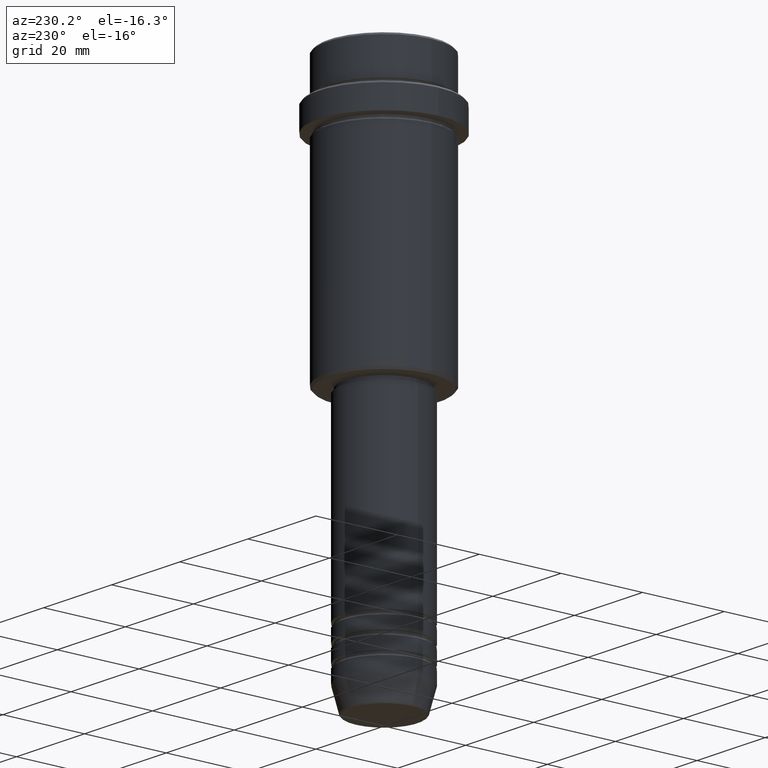
[diagram: clean part render]
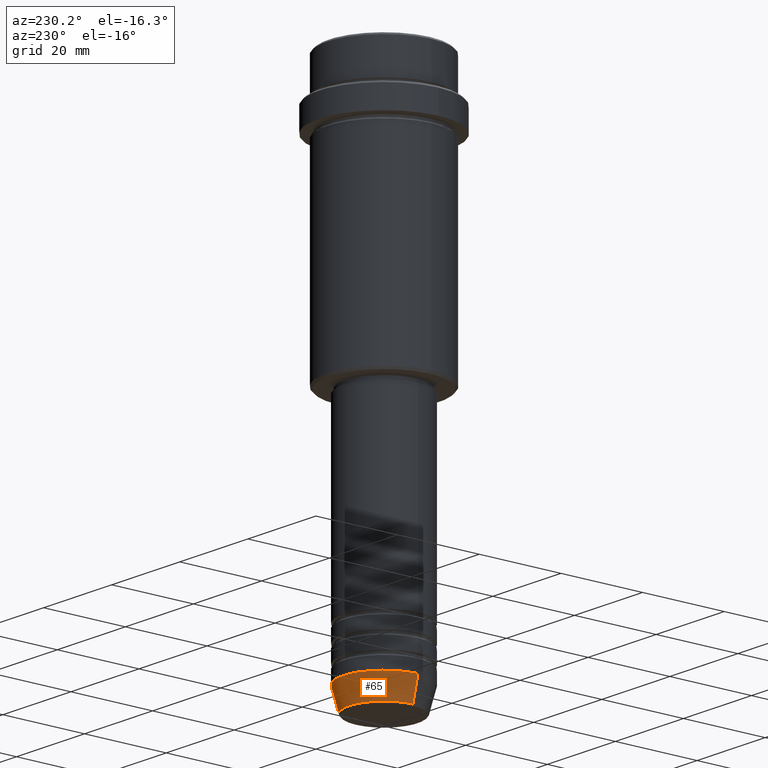
[diagram: same view with one face highlighted and labeled with its STEP entity id]
A machine part, auxiliary view. The second image highlights one B-rep face of the part: STEP entity #65.
In plain terms, the highlighted conical surface has half-angle 15 deg.
Its self-contained STEP definition (entity closure, byte-faithful):
#12 = VERTEX_POINT ( 'NONE', #908 ) ;
#27 = VERTEX_POINT ( 'NONE', #264 ) ;
#50 = DIRECTION ( 'NONE',  ( -0.000000000000000000, -0.000000000000000000, 1.000000000000000000 ) ) ;
#55 = EDGE_LOOP ( 'NONE', ( #1011, #124, #1270, #222 ) ) ;
#65 = ADVANCED_FACE ( 'NONE', ( #1133 ), #1342, .T. ) ;
#66 = CIRCLE ( 'NONE', #867, 10.00000000000000000 ) ;
#93 = CARTESIAN_POINT ( 'NONE',  ( -10.00000000000000000, 1.224646799147353256E-15, -124.0000000000000000 ) ) ;
#97 = CARTESIAN_POINT ( 'NONE',  ( 0.000000000000000000, 0.000000000000000000, -129.6294095225512706 ) ) ;
#124 = ORIENTED_EDGE ( 'NONE', *, *, #1255, .T. ) ;
#147 = CARTESIAN_POINT ( 'NONE',  ( 0.000000000000000000, 0.000000000000000000, -124.0000000000000000 ) ) ;
#179 = DIRECTION ( 'NONE',  ( 1.000000000000000000, 0.000000000000000000, 0.000000000000000000 ) ) ;
#222 = ORIENTED_EDGE ( 'NONE', *, *, #767, .F. ) ;
#251 = VECTOR ( 'NONE', #658, 1000.000000000000114 ) ;
#255 = EDGE_CURVE ( 'NONE', #956, #27, #842, .T. ) ;
#264 = CARTESIAN_POINT ( 'NONE',  ( -8.491604264568309191, 1.132284198685156387E-15, -129.6294095225512706 ) ) ;
#275 = DIRECTION ( 'NONE',  ( 1.000000000000000000, 0.000000000000000000, 0.000000000000000000 ) ) ;
#426 = CARTESIAN_POINT ( 'NONE',  ( 10.00000000000000000, 0.000000000000000000, -124.0000000000000000 ) ) ;
#612 = AXIS2_PLACEMENT_3D ( 'NONE', #147, #50, #275 ) ;
#635 = LINE ( 'NONE', #93, #251 ) ;
#658 = DIRECTION ( 'NONE',  ( -0.2588190451025211281, 3.169619151431769872E-17, 0.9659258262890680902 ) ) ;
#679 = VERTEX_POINT ( 'NONE', #1078 ) ;
#764 = CARTESIAN_POINT ( 'NONE',  ( 0.000000000000000000, 0.000000000000000000, -124.0000000000000000 ) ) ;
#767 = EDGE_CURVE ( 'NONE', #956, #12, #1107, .T. ) ;
#776 = DIRECTION ( 'NONE',  ( 1.000000000000000000, 0.000000000000000000, 0.000000000000000000 ) ) ;
#833 = DIRECTION ( 'NONE',  ( -0.000000000000000000, -0.000000000000000000, 1.000000000000000000 ) ) ;
#842 = CIRCLE ( 'NONE', #1140, 8.491604264568309191 ) ;
#850 = EDGE_CURVE ( 'NONE', #12, #679, #66, .T. ) ;
#867 = AXIS2_PLACEMENT_3D ( 'NONE', #764, #1310, #776 ) ;
#908 = CARTESIAN_POINT ( 'NONE',  ( 10.00000000000000000, 0.000000000000000000, -124.0000000000000000 ) ) ;
#956 = VERTEX_POINT ( 'NONE', #1020 ) ;
#1011 = ORIENTED_EDGE ( 'NONE', *, *, #255, .T. ) ;
#1020 = CARTESIAN_POINT ( 'NONE',  ( 8.491604264568309191, 0.000000000000000000, -129.6294095225512706 ) ) ;
#1052 = VECTOR ( 'NONE', #1086, 1000.000000000000114 ) ;
#1078 = CARTESIAN_POINT ( 'NONE',  ( -10.00000000000000000, 1.224646799147353256E-15, -124.0000000000000000 ) ) ;
#1086 = DIRECTION ( 'NONE',  ( 0.2588190451025211281, 0.000000000000000000, 0.9659258262890680902 ) ) ;
#1107 = LINE ( 'NONE', #426, #1052 ) ;
#1133 = FACE_OUTER_BOUND ( 'NONE', #55, .T. ) ;
#1140 = AXIS2_PLACEMENT_3D ( 'NONE', #97, #833, #179 ) ;
#1255 = EDGE_CURVE ( 'NONE', #27, #679, #635, .T. ) ;
#1270 = ORIENTED_EDGE ( 'NONE', *, *, #850, .F. ) ;
#1310 = DIRECTION ( 'NONE',  ( -0.000000000000000000, -0.000000000000000000, 1.000000000000000000 ) ) ;
#1342 = CONICAL_SURFACE ( 'NONE', #612, 10.00000000000000000, 0.2617993877991498519 ) ;